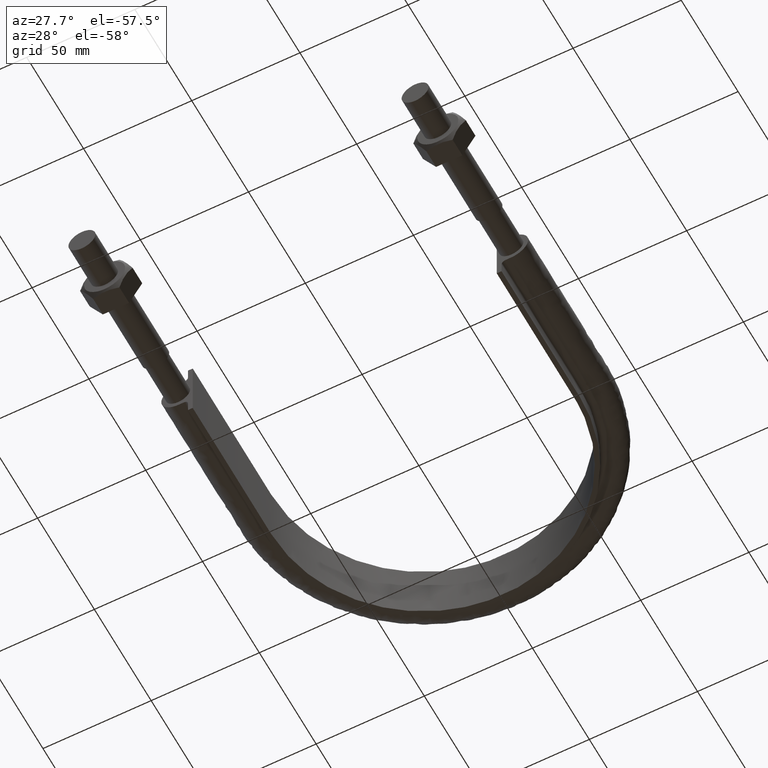
[diagram: clean part render]
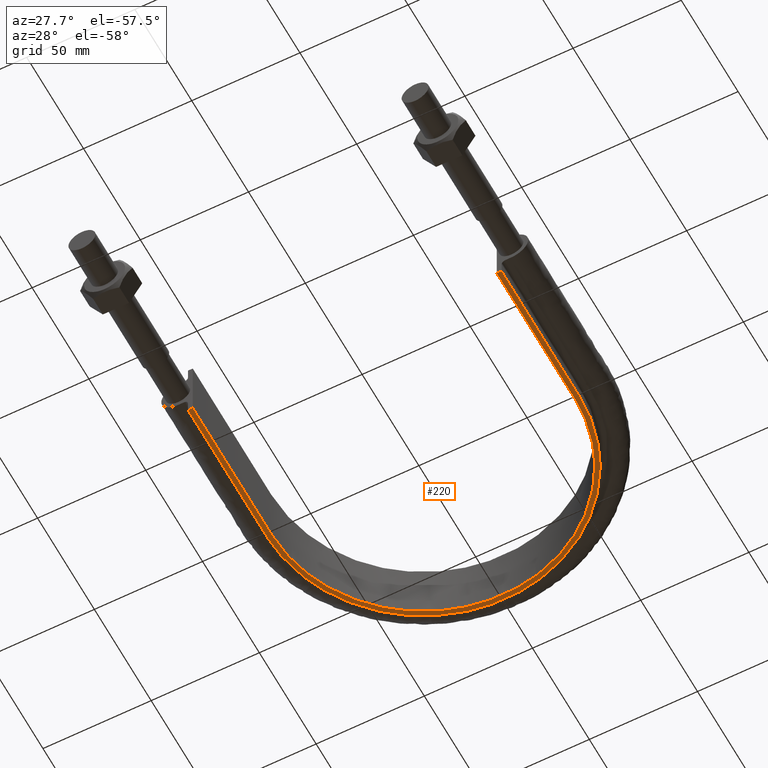
[diagram: same view with one face highlighted and labeled with its STEP entity id]
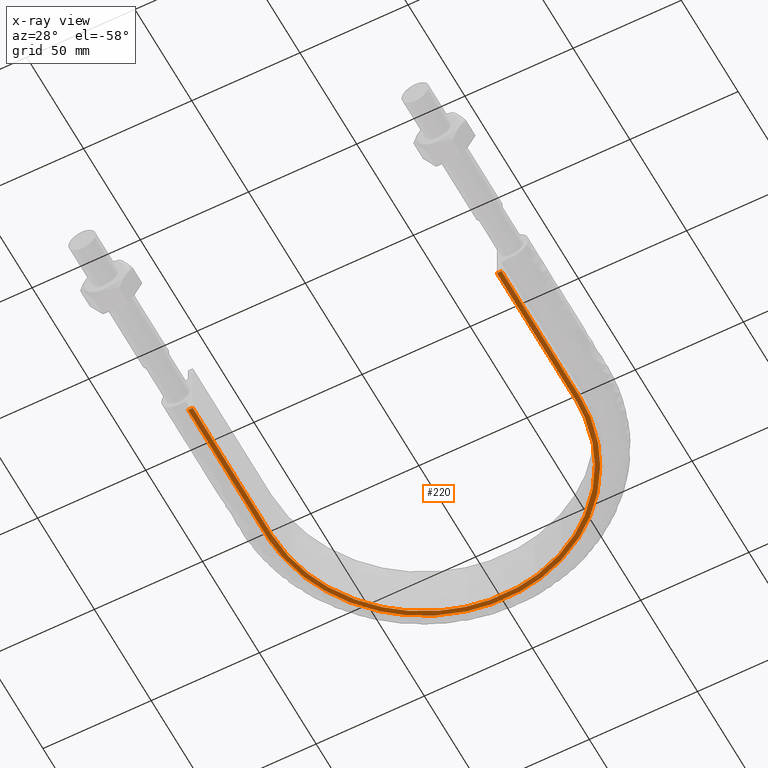
[diagram: x-ray of the same camera — body ghosted, the highlighted face saturated]
A machine part, auxiliary view. The second image highlights one B-rep face of the part: STEP entity #220.
The next image is the same camera in x-ray: the body ghosted, the highlighted face saturated — about 0% of this face is hidden behind the body in this view.
In plain terms, the highlighted planar face has unit normal (0, 0, 1).
Its self-contained STEP definition (entity closure, byte-faithful):
#220 = ADVANCED_FACE( '', ( #263 ), #264, .F. );
#263 = FACE_OUTER_BOUND( '', #365, .T. );
#264 = PLANE( '', #366 );
#365 = EDGE_LOOP( '', ( #1318, #1319, #1320, #1321 ) );
#366 = AXIS2_PLACEMENT_3D( '', #1322, #1323, #1324 );
#1318 = ORIENTED_EDGE( '', *, *, #1604, .F. );
#1319 = ORIENTED_EDGE( '', *, *, #1602, .F. );
#1320 = ORIENTED_EDGE( '', *, *, #1605, .F. );
#1321 = ORIENTED_EDGE( '', *, *, #1606, .F. );
#1322 = CARTESIAN_POINT( '', ( 100.000000000000, 284.710000000000, -15.0000000000000 ) );
#1323 = DIRECTION( '', ( 0.000000000000000, 0.000000000000000, 1.00000000000000 ) );
#1324 = DIRECTION( '', ( 1.00000000000000, 0.000000000000000, 0.000000000000000 ) );
#1602 = EDGE_CURVE( '', #1686, #1681, #1688, .T. );
#1604 = EDGE_CURVE( '', #1681, #1691, #1692, .T. );
#1605 = EDGE_CURVE( '', #1693, #1686, #1694, .T. );
#1606 = EDGE_CURVE( '', #1691, #1693, #1695, .T. );
#1681 = VERTEX_POINT( '', #1829 );
#1686 = VERTEX_POINT( '', #1836 );
#1688 = LINE( '', #1868, #1869 );
#1691 = VERTEX_POINT( '', #1882 );
#1692 = B_SPLINE_CURVE_WITH_KNOTS( '', 3, ( #1883, #1884, #1885, #1886, #1887, #1888, #1889, #1890, #1891, #1892, #1893, #1894, #1895, #1896, #1897, #1898 ), .UNSPECIFIED., .F., .F., ( 4, 3, 1, 1, 1, 1, 1, 1, 3, 4 ), ( -9.00000000000000, -8.00000000000000, -7.00000000000000, -6.00000000000000, -5.00000000000000, -4.00000000000000, -3.00000000000000, -2.00000000000000, -1.00000000000000, 0.000000000000000 ), .UNSPECIFIED. );
#1693 = VERTEX_POINT( '', #1899 );
#1694 = B_SPLINE_CURVE_WITH_KNOTS( '', 3, ( #1900, #1901, #1902, #1903, #1904, #1905, #1906, #1907, #1908, #1909, #1910, #1911, #1912, #1913, #1914, #1915 ), .UNSPECIFIED., .F., .F., ( 4, 3, 1, 1, 1, 1, 1, 1, 3, 4 ), ( 0.000000000000000, 1.00000000000000, 2.00000000000000, 3.00000000000000, 4.00000000000000, 5.00000000000000, 6.00000000000000, 7.00000000000000, 8.00000000000000, 9.00000000000000 ), .UNSPECIFIED. );
#1695 = LINE( '', #1916, #1917 );
#1829 = CARTESIAN_POINT( '', ( -70.2500000000000, 84.7100000000000, -15.0000000000000 ) );
#1836 = CARTESIAN_POINT( '', ( -72.4500000000000, 84.7100000000000, -15.0000000000000 ) );
#1868 = CARTESIAN_POINT( '', ( -100.000000000000, 84.7100000000000, -15.0000000000000 ) );
#1869 = VECTOR( '', #2329, 1000.00000000000 );
#1882 = CARTESIAN_POINT( '', ( 70.2500000000000, 84.7100000000000, -15.0000000000000 ) );
#1883 = CARTESIAN_POINT( '', ( -70.2500000000000, 84.7100000000000, -15.0000000000000 ) );
#1884 = CARTESIAN_POINT( '', ( -70.2500000000000, 107.726666666667, -15.0000000000000 ) );
#1885 = CARTESIAN_POINT( '', ( -70.2500000000000, 130.743333333333, -15.0000000000000 ) );
#1886 = CARTESIAN_POINT( '', ( -70.2500000000000, 153.760000000000, -15.0000000000000 ) );
#1887 = CARTESIAN_POINT( '', ( -70.2500000000000, 164.249418134732, -15.0000000000000 ) );
#1888 = CARTESIAN_POINT( '', ( -65.4537147955432, 185.288971927909, -15.0000000000000 ) );
#1889 = CARTESIAN_POINT( '', ( -45.2953760364684, 210.556467088273, -15.0000000000000 ) );
#1890 = CARTESIAN_POINT( '', ( -16.1657325420394, 224.587129579273, -15.0000000000000 ) );
#1891 = CARTESIAN_POINT( '', ( 16.1657325420395, 224.587129579273, -15.0000000000000 ) );
#1892 = CARTESIAN_POINT( '', ( 45.2953760364684, 210.556467088273, -15.0000000000000 ) );
#1893 = CARTESIAN_POINT( '', ( 65.4537147955432, 185.288971927909, -15.0000000000000 ) );
#1894 = CARTESIAN_POINT( '', ( 70.2500000000000, 164.249418134732, -15.0000000000000 ) );
#1895 = CARTESIAN_POINT( '', ( 70.2500000000000, 153.760000000000, -15.0000000000000 ) );
#1896 = CARTESIAN_POINT( '', ( 70.2500000000000, 130.743333333333, -15.0000000000000 ) );
#1897 = CARTESIAN_POINT( '', ( 70.2500000000000, 107.726666666667, -15.0000000000000 ) );
#1898 = CARTESIAN_POINT( '', ( 70.2500000000000, 84.7100000000000, -15.0000000000000 ) );
#1899 = CARTESIAN_POINT( '', ( 72.4500000000000, 84.7100000000000, -15.0000000000000 ) );
#1900 = CARTESIAN_POINT( '', ( 72.4500000000000, 84.7100000000000, -15.0000000000000 ) );
#1901 = CARTESIAN_POINT( '', ( 72.4500000000000, 107.726666666667, -15.0000000000000 ) );
#1902 = CARTESIAN_POINT( '', ( 72.4500000000000, 130.743333333333, -15.0000000000000 ) );
#1903 = CARTESIAN_POINT( '', ( 72.4500000000000, 153.760000000000, -15.0000000000000 ) );
#1904 = CARTESIAN_POINT( '', ( 72.4500000000000, 164.584175230504, -15.0000000000000 ) );
#1905 = CARTESIAN_POINT( '', ( 67.5035108460798, 186.273453800089, -15.0000000000000 ) );
#1906 = CARTESIAN_POINT( '', ( 46.7138789159023, 212.335910248336, -15.0000000000000 ) );
#1907 = CARTESIAN_POINT( '', ( 16.6719903583027, 226.805050635421, -15.0000000000000 ) );
#1908 = CARTESIAN_POINT( '', ( -16.6719903583025, 226.805050635421, -15.0000000000000 ) );
#1909 = CARTESIAN_POINT( '', ( -46.7138789159022, 212.335910248336, -15.0000000000000 ) );
#1910 = CARTESIAN_POINT( '', ( -67.5035108460798, 186.273453800089, -15.0000000000000 ) );
#1911 = CARTESIAN_POINT( '', ( -72.4500000000000, 164.584175230504, -15.0000000000000 ) );
#1912 = CARTESIAN_POINT( '', ( -72.4500000000000, 153.760000000000, -15.0000000000000 ) );
#1913 = CARTESIAN_POINT( '', ( -72.4500000000000, 130.743333333333, -15.0000000000000 ) );
#1914 = CARTESIAN_POINT( '', ( -72.4500000000000, 107.726666666667, -15.0000000000000 ) );
#1915 = CARTESIAN_POINT( '', ( -72.4500000000000, 84.7100000000000, -15.0000000000000 ) );
#1916 = CARTESIAN_POINT( '', ( -100.000000000000, 84.7100000000000, -15.0000000000000 ) );
#1917 = VECTOR( '', #2330, 1000.00000000000 );
#2329 = DIRECTION( '', ( 1.00000000000000, -1.22460635382238E-016, 0.000000000000000 ) );
#2330 = DIRECTION( '', ( 1.00000000000000, -1.22460635382238E-016, 0.000000000000000 ) );